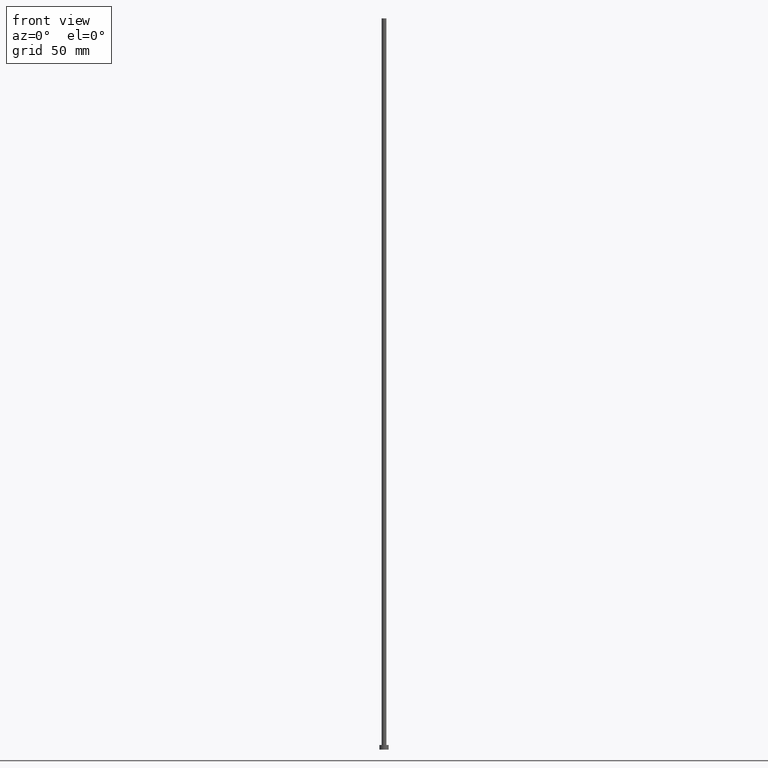
[diagram: clean part render]
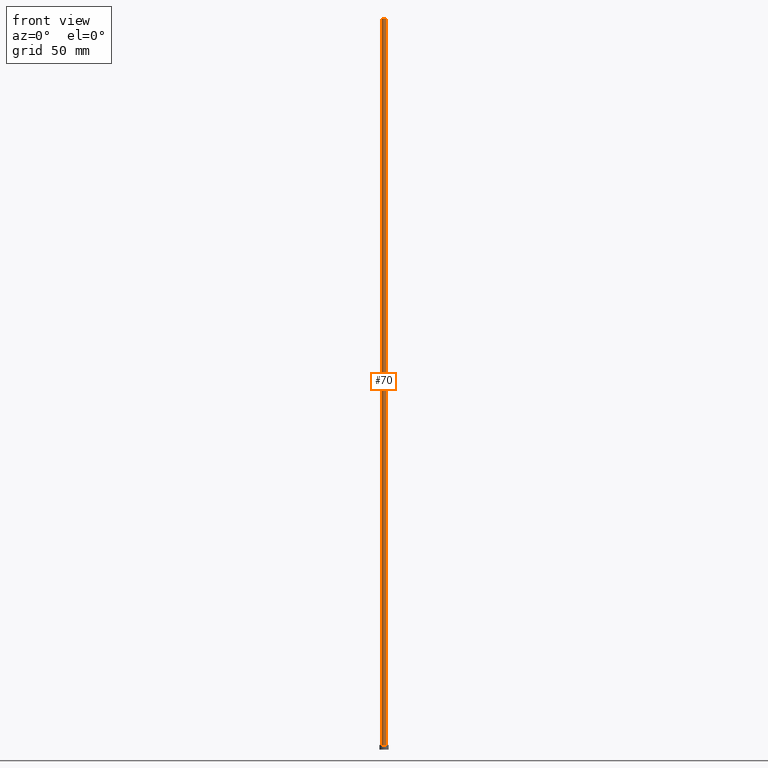
[diagram: same view with one face highlighted and labeled with its STEP entity id]
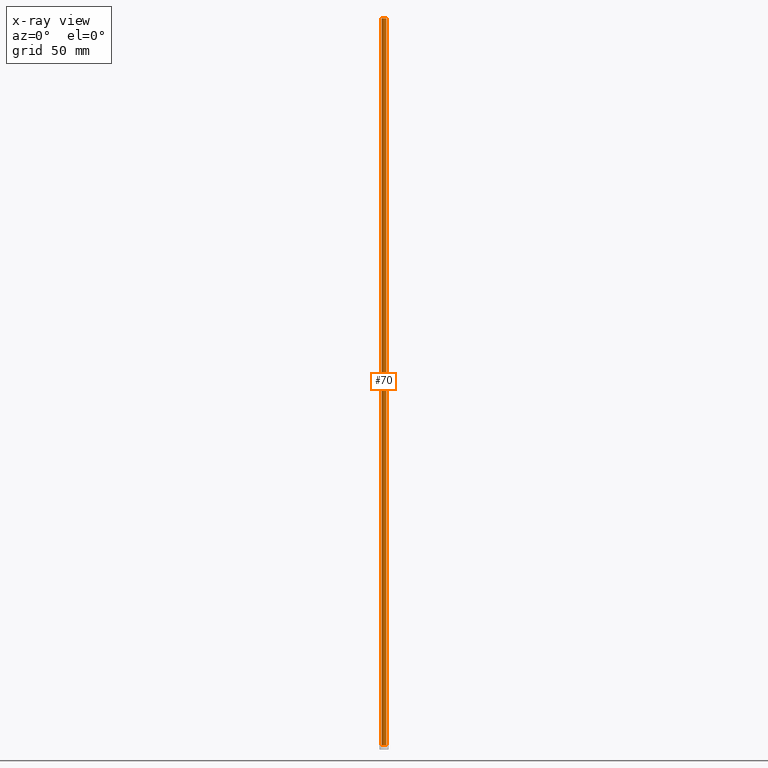
[diagram: x-ray of the same camera — body ghosted, the highlighted face saturated]
A machine part, front view. The second image highlights one B-rep face of the part: STEP entity #70.
The next image is the same camera in x-ray: the body ghosted, the highlighted face saturated — about 0% of this face is hidden behind the body in this view.
In plain terms, the highlighted cylindrical surface (edge-blend (fillet) strip) has radius 1 mm, axis along (-0, -0, -1).
Its self-contained STEP definition (entity closure, byte-faithful):
#5 = CIRCLE ( 'NONE', #194, 1.000000000000000000 ) ;
#6 = CARTESIAN_POINT ( 'NONE',  ( 1.000000000000000000, 1.224646799147353207E-16, 2.000000000000000000 ) ) ;
#20 = VERTEX_POINT ( 'NONE', #157 ) ;
#22 = ORIENTED_EDGE ( 'NONE', *, *, #27, .F. ) ;
#25 = VECTOR ( 'NONE', #178, 1000.000000000000000 ) ;
#26 = CARTESIAN_POINT ( 'NONE',  ( -1.000000000000000000, 0.000000000000000000, 315.0000000000000000 ) ) ;
#27 = EDGE_CURVE ( 'NONE', #67, #20, #5, .T. ) ;
#29 = CARTESIAN_POINT ( 'NONE',  ( 0.000000000000000000, 0.000000000000000000, 2.000000000000000000 ) ) ;
#33 = DIRECTION ( 'NONE',  ( -0.000000000000000000, -0.000000000000000000, -1.000000000000000000 ) ) ;
#50 = CYLINDRICAL_SURFACE ( 'NONE', #66, 1.000000000000000000 ) ;
#51 = CARTESIAN_POINT ( 'NONE',  ( 0.000000000000000000, 0.000000000000000000, 315.0000000000000000 ) ) ;
#58 = EDGE_CURVE ( 'NONE', #67, #236, #220, .T. ) ;
#66 = AXIS2_PLACEMENT_3D ( 'NONE', #87, #33, #73 ) ;
#67 = VERTEX_POINT ( 'NONE', #26 ) ;
#70 = ADVANCED_FACE ( 'NONE', ( #105 ), #50, .T. ) ;
#73 = DIRECTION ( 'NONE',  ( -1.000000000000000000, 0.000000000000000000, 0.000000000000000000 ) ) ;
#79 = CARTESIAN_POINT ( 'NONE',  ( -1.000000000000000000, 0.000000000000000000, 2.000000000000000000 ) ) ;
#87 = CARTESIAN_POINT ( 'NONE',  ( 0.000000000000000000, 0.000000000000000000, 315.0000000000000000 ) ) ;
#89 = DIRECTION ( 'NONE',  ( 0.000000000000000000, 0.000000000000000000, 1.000000000000000000 ) ) ;
#102 = LINE ( 'NONE', #249, #25 ) ;
#103 = DIRECTION ( 'NONE',  ( 1.000000000000000000, 0.000000000000000000, 0.000000000000000000 ) ) ;
#105 = FACE_OUTER_BOUND ( 'NONE', #108, .T. ) ;
#108 = EDGE_LOOP ( 'NONE', ( #214, #22, #198, #154 ) ) ;
#113 = VERTEX_POINT ( 'NONE', #6 ) ;
#118 = DIRECTION ( 'NONE',  ( -0.000000000000000000, -0.000000000000000000, -1.000000000000000000 ) ) ;
#135 = DIRECTION ( 'NONE',  ( 0.000000000000000000, 0.000000000000000000, 1.000000000000000000 ) ) ;
#145 = VECTOR ( 'NONE', #118, 1000.000000000000000 ) ;
#149 = EDGE_CURVE ( 'NONE', #236, #113, #156, .T. ) ;
#154 = ORIENTED_EDGE ( 'NONE', *, *, #149, .T. ) ;
#156 = CIRCLE ( 'NONE', #174, 1.000000000000000000 ) ;
#157 = CARTESIAN_POINT ( 'NONE',  ( 1.000000000000000000, 1.224646799147353207E-16, 315.0000000000000000 ) ) ;
#174 = AXIS2_PLACEMENT_3D ( 'NONE', #29, #89, #244 ) ;
#178 = DIRECTION ( 'NONE',  ( -0.000000000000000000, -0.000000000000000000, -1.000000000000000000 ) ) ;
#194 = AXIS2_PLACEMENT_3D ( 'NONE', #51, #135, #103 ) ;
#198 = ORIENTED_EDGE ( 'NONE', *, *, #58, .T. ) ;
#214 = ORIENTED_EDGE ( 'NONE', *, *, #221, .F. ) ;
#220 = LINE ( 'NONE', #223, #145 ) ;
#221 = EDGE_CURVE ( 'NONE', #20, #113, #102, .T. ) ;
#223 = CARTESIAN_POINT ( 'NONE',  ( -1.000000000000000000, 0.000000000000000000, 315.0000000000000000 ) ) ;
#236 = VERTEX_POINT ( 'NONE', #79 ) ;
#244 = DIRECTION ( 'NONE',  ( 1.000000000000000000, 0.000000000000000000, 0.000000000000000000 ) ) ;
#249 = CARTESIAN_POINT ( 'NONE',  ( 1.000000000000000000, 1.224646799147353207E-16, 315.0000000000000000 ) ) ;